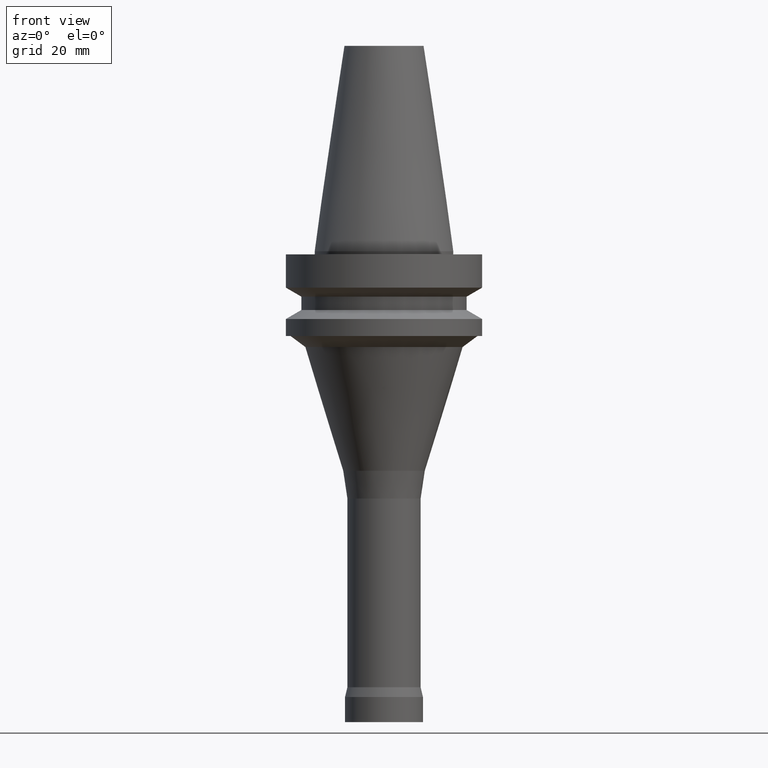
[diagram: clean part render]
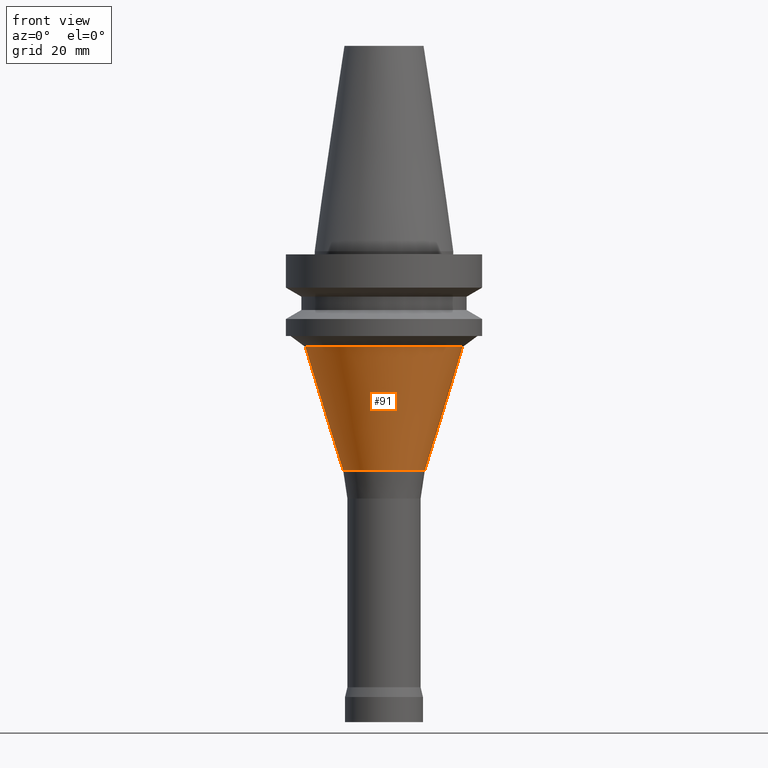
[diagram: same view with one face highlighted and labeled with its STEP entity id]
A machine part, front view. The second image highlights one B-rep face of the part: STEP entity #91.
In plain terms, the highlighted conical surface has half-angle 17.125 deg.
Its self-contained STEP definition (entity closure, byte-faithful):
#91=ADVANCED_FACE('',(#139,#140),#141,.T.);
#139=FACE_BOUND('',#188,.T.);
#140=FACE_BOUND('',#189,.T.);
#141=CONICAL_SURFACE('',#190,19.1508756881418,0.298888874953659);
#188=EDGE_LOOP('',(#269));
#189=EDGE_LOOP('',(#270));
#190=AXIS2_PLACEMENT_3D('',#271,#272,#273);
#269=ORIENTED_EDGE('',*,*,#278,.F.);
#270=ORIENTED_EDGE('',*,*,#289,.T.);
#271=CARTESIAN_POINT('',(3.0757298428633E-015,6.1514596857266E-015,-50.2304802495665));
#272=DIRECTION('',(-6.12323399573677E-017,-1.22464679914735E-016,1.0));
#273=DIRECTION('',(-1.23259516440783E-032,1.0,1.22464679914735E-016));
#278=EDGE_CURVE('',#298,#298,#299,.T.);
#289=EDGE_CURVE('',#320,#320,#321,.T.);
#298=VERTEX_POINT('',#330);
#299=CIRCLE('',#331,13.0800722248044);
#320=VERTEX_POINT('',#352);
#321=CIRCLE('',#353,25.2216791514791);
#330=CARTESIAN_POINT('',(4.28217681964988E-015,13.0800722248044,-69.9332545944072));
#331=AXIS2_PLACEMENT_3D('',#366,#367,#368);
#352=CARTESIAN_POINT('',(1.86928286607671E-015,25.2216791514791,-30.5277059047258));
#353=AXIS2_PLACEMENT_3D('',#399,#400,#401);
#366=CARTESIAN_POINT('',(4.28217681964988E-015,8.56435363929977E-015,-69.9332545944072));
#367=DIRECTION('',(6.12323399573677E-017,1.22464679914735E-016,-1.0));
#368=DIRECTION('',(-1.23259516440783E-032,1.0,1.22464679914735E-016));
#399=CARTESIAN_POINT('',(1.86928286607671E-015,3.73856573215342E-015,-30.5277059047258));
#400=DIRECTION('',(6.12323399573677E-017,1.22464679914735E-016,-1.0));
#401=DIRECTION('',(-1.23259516440783E-032,1.0,1.22464679914735E-016));